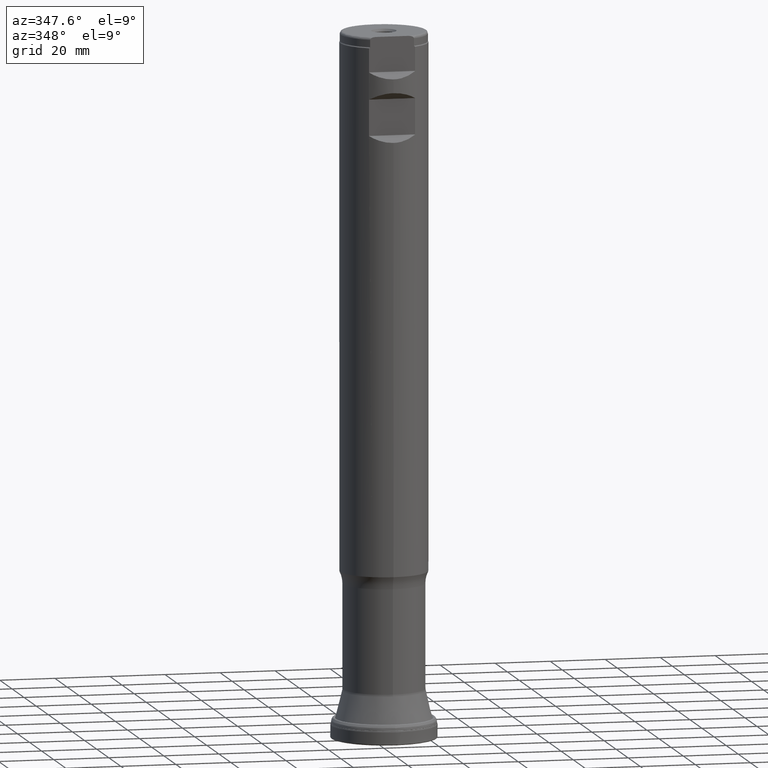
[diagram: clean part render]
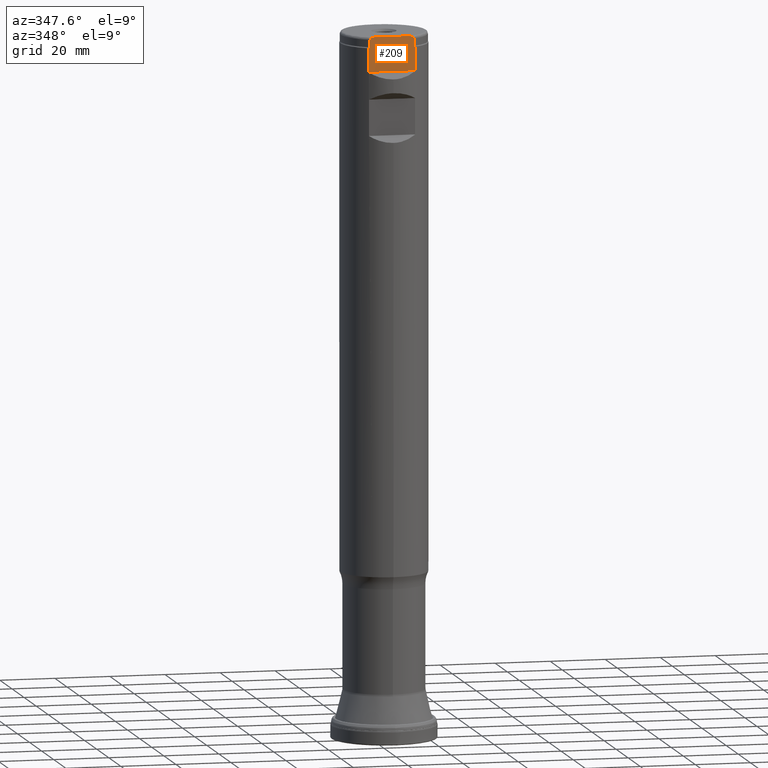
[diagram: same view with one face highlighted and labeled with its STEP entity id]
A machine part, auxiliary view. The second image highlights one B-rep face of the part: STEP entity #209.
In plain terms, the highlighted planar face has unit normal (0, -1, 0).
Its self-contained STEP definition (entity closure, byte-faithful):
#164=PLANE('',#857);
#179=FACE_OUTER_BOUND('',#409,.T.);
#209=ADVANCED_FACE('',(#179),#164,.T.);
#409=EDGE_LOOP('',(#562,#563,#564,#565,#566,#567,#568,#569,#570,#571));
#461=LINE('',#1362,#480);
#462=LINE('',#1366,#481);
#463=LINE('',#1399,#482);
#464=LINE('',#1400,#483);
#465=LINE('',#1407,#484);
#466=LINE('',#1475,#485);
#480=VECTOR('',#896,1.);
#481=VECTOR('',#899,1.);
#482=VECTOR('',#910,1.);
#483=VECTOR('',#911,1.);
#484=VECTOR('',#918,1.);
#485=VECTOR('',#987,1.);
#562=ORIENTED_EDGE('',*,*,#737,.T.);
#563=ORIENTED_EDGE('',*,*,#708,.F.);
#564=ORIENTED_EDGE('',*,*,#713,.F.);
#565=ORIENTED_EDGE('',*,*,#715,.F.);
#566=ORIENTED_EDGE('',*,*,#721,.F.);
#567=ORIENTED_EDGE('',*,*,#719,.F.);
#568=ORIENTED_EDGE('',*,*,#720,.F.);
#569=ORIENTED_EDGE('',*,*,#716,.F.);
#570=ORIENTED_EDGE('',*,*,#711,.F.);
#571=ORIENTED_EDGE('',*,*,#706,.F.);
#645=VERTEX_POINT('',#1360);
#647=VERTEX_POINT('',#1363);
#648=VERTEX_POINT('',#1365);
#649=VERTEX_POINT('',#1367);
#651=VERTEX_POINT('',#1388);
#652=VERTEX_POINT('',#1390);
#653=VERTEX_POINT('',#1397);
#654=VERTEX_POINT('',#1398);
#656=VERTEX_POINT('',#1405);
#657=VERTEX_POINT('',#1406);
#706=EDGE_CURVE('',#645,#647,#461,.T.);
#708=EDGE_CURVE('',#648,#649,#462,.T.);
#711=EDGE_CURVE('',#647,#651,#791,.T.);
#713=EDGE_CURVE('',#652,#648,#792,.T.);
#715=EDGE_CURVE('',#654,#652,#463,.T.);
#716=EDGE_CURVE('',#651,#653,#464,.T.);
#719=EDGE_CURVE('',#657,#656,#465,.T.);
#720=EDGE_CURVE('',#653,#657,#793,.T.);
#721=EDGE_CURVE('',#656,#654,#794,.T.);
#737=EDGE_CURVE('',#645,#649,#466,.T.);
#791=B_SPLINE_CURVE_WITH_KNOTS('',3,(#1384,#1385,#1386,#1387),
 .UNSPECIFIED.,.F.,.F.,(4,4),(0.,1.),.UNSPECIFIED.);
#792=B_SPLINE_CURVE_WITH_KNOTS('',3,(#1391,#1392,#1393,#1394),
 .UNSPECIFIED.,.F.,.F.,(4,4),(0.,1.),.UNSPECIFIED.);
#793=B_SPLINE_CURVE_WITH_KNOTS('',3,(#1409,#1410,#1411,#1412,#1413,#1414,
#1415,#1416),.UNSPECIFIED.,.F.,.F.,(4,2,2,4),(0.,0.249999999999999,0.499999999999999,
1.),.UNSPECIFIED.);
#794=B_SPLINE_CURVE_WITH_KNOTS('',3,(#1417,#1418,#1419,#1420,#1421,#1422,
#1423,#1424),.UNSPECIFIED.,.F.,.F.,(4,2,2,4),(0.,0.500000000000009,0.750000000000005,
1.),.UNSPECIFIED.);
#857=AXIS2_PLACEMENT_3D('',#1476,#988,#989);
#896=DIRECTION('',(0.,1.17145536458252E-15,1.));
#899=DIRECTION('',(0.,-1.17145536458252E-15,-1.));
#910=DIRECTION('',(0.,-1.17145536458252E-15,-1.));
#911=DIRECTION('',(0.,1.17145536458252E-15,1.));
#918=DIRECTION('',(1.,-1.37230767120917E-30,-1.17145536458252E-15));
#987=DIRECTION('',(1.,-1.37230767120917E-30,-1.17145536458252E-15));
#988=DIRECTION('',(0.,-1.,1.17145536458252E-15));
#989=DIRECTION('',(1.17267306976032E-15,1.17093834628434E-15,1.));
#1360=CARTESIAN_POINT('',(-8.37291264972948,-13.4873999999997,241.424264068712));
#1362=CARTESIAN_POINT('',(-8.37291264972948,-13.4874,1.57998870842703E-14));
#1363=CARTESIAN_POINT('',(-8.37291264972948,-13.4873999999997,250.));
#1365=CARTESIAN_POINT('',(8.37291264972948,-13.4873999999997,250.));
#1366=CARTESIAN_POINT('',(8.37291264972948,-13.4874,1.57998870842703E-14));
#1367=CARTESIAN_POINT('',(8.37291264972948,-13.4873999999997,241.424264068712));
#1384=CARTESIAN_POINT('',(-8.3729126497295,-13.4873999999997,250.));
#1385=CARTESIAN_POINT('',(-8.24537216173965,-13.4873999999997,250.116512233654));
#1386=CARTESIAN_POINT('',(-8.11683755434126,-13.4873999999997,250.232012782716));
#1387=CARTESIAN_POINT('',(-7.98721893026606,-13.4873999999997,250.346410161514));
#1388=CARTESIAN_POINT('',(-7.98721893026603,-13.4873999999997,250.346410161514));
#1390=CARTESIAN_POINT('',(7.98721893026603,-13.4873999999997,250.346410161514));
#1391=CARTESIAN_POINT('',(7.98721893026604,-13.4873999999997,250.346410161514));
#1392=CARTESIAN_POINT('',(8.11685003072469,-13.4873999999997,250.232001771447));
#1393=CARTESIAN_POINT('',(8.24538408682384,-13.4873999999997,250.116501339716));
#1394=CARTESIAN_POINT('',(8.37291264972948,-13.4873999999997,250.));
#1397=CARTESIAN_POINT('',(-7.98721893028871,-13.4873999999997,252.999999999989));
#1398=CARTESIAN_POINT('',(7.98721893026603,-13.4873999999997,253.));
#1399=CARTESIAN_POINT('',(7.98721893026603,-13.4874,1.57998870842703E-14));
#1400=CARTESIAN_POINT('',(-7.98721893026603,-13.4874,1.57998870842703E-14));
#1405=CARTESIAN_POINT('',(5.78322282468844,-13.4873999999997,254.));
#1406=CARTESIAN_POINT('',(-5.78322282468865,-13.4873999999997,254.));
#1407=CARTESIAN_POINT('',(-17.5,-13.4873999999997,254.));
#1409=CARTESIAN_POINT('',(-7.98721893026688,-13.4873999999997,252.999999999988));
#1410=CARTESIAN_POINT('',(-7.98721893027207,-13.4873999999997,253.22020277002));
#1411=CARTESIAN_POINT('',(-7.83736774434979,-13.4873999999997,253.415154682752));
#1412=CARTESIAN_POINT('',(-7.48623082979296,-13.4873999999997,253.680139720299));
#1413=CARTESIAN_POINT('',(-7.2817203242156,-13.4873999999997,253.767554950671));
#1414=CARTESIAN_POINT('',(-6.65729293981298,-13.4873999999997,253.9609297127));
#1415=CARTESIAN_POINT('',(-6.21637245039725,-13.4873999999997,254.));
#1416=CARTESIAN_POINT('',(-5.78322282468865,-13.4873999999997,254.));
#1417=CARTESIAN_POINT('',(5.78322282468844,-13.4873999999997,254.));
#1418=CARTESIAN_POINT('',(6.21394869343174,-13.4873999999997,254.));
#1419=CARTESIAN_POINT('',(6.65580566004196,-13.4873999999997,253.961664403719));
#1420=CARTESIAN_POINT('',(7.28486381477456,-13.4873999999997,253.76644362587));
#1421=CARTESIAN_POINT('',(7.48748729423045,-13.4873999999997,253.679507582041));
#1422=CARTESIAN_POINT('',(7.83842269980535,-13.4873999999997,253.414040424023));
#1423=CARTESIAN_POINT('',(7.98721893026604,-13.4873999999997,253.222383261353));
#1424=CARTESIAN_POINT('',(7.98721893026603,-13.4873999999997,253.));
#1475=CARTESIAN_POINT('',(-17.5,-13.4873999999997,241.424264068712));
#1476=CARTESIAN_POINT('',(-17.5,-13.4873999999997,254.));